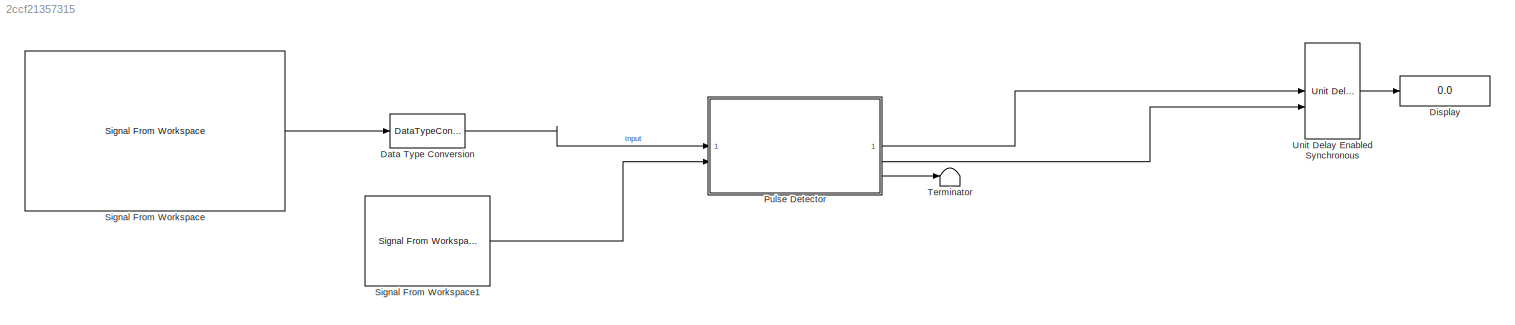
MODEL slx_2ccf21357315
KIND model
CONFIG AbsTol = auto
CONFIG EnableMultiTasking = off
CONFIG FixedStep = auto
CONFIG MaxStep = auto
CONFIG MinStep = auto
CONFIG RelTol = 1e-3
CONFIG SampleTimeConstraint = Unconstrained
CONFIG SolverName = FixedStepDiscrete
CONFIG StartTime = 0.0
CONFIG StopTime = SimTime
BLOCK [DataTypeConversion] Data Type Conversion
  OutDataTypeStr = DT_input
  RndMeth = Floor
  SaturateOnIntegerOverflow = off
BLOCK [Display] Display
  Decimation = 1
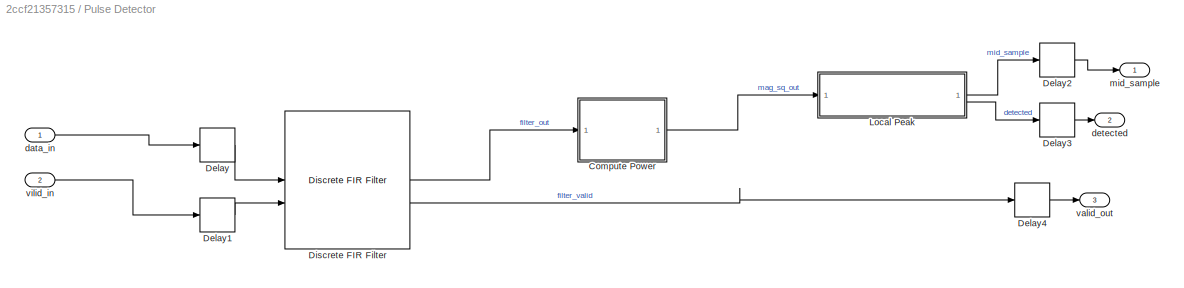
BLOCK [SubSystem] Pulse Detector
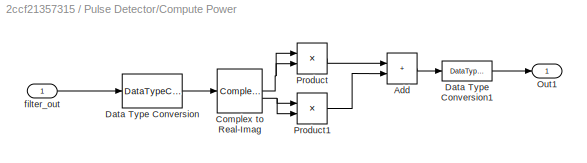
BLOCK [SubSystem] Pulse Detector/Compute Power
BLOCK [Sum] Pulse Detector/Compute Power/Add
  IconShape = rectangular
BLOCK [ComplexToRealImag] Pulse Detector/Compute Power/Complex to Real-Imag
BLOCK [DataTypeConversion] Pulse Detector/Compute Power/Data Type Conversion
  OutDataTypeStr = DT_filter
  RndMeth = Floor
  SaturateOnIntegerOverflow = off
BLOCK [DataTypeConversion] Pulse Detector/Compute Power/Data Type Conversion1
  OutDataTypeStr = DT_power
  RndMeth = Floor
  SaturateOnIntegerOverflow = off
BLOCK [Outport] Pulse Detector/Compute Power/Out1
BLOCK [Product] Pulse Detector/Compute Power/Product
BLOCK [Product] Pulse Detector/Compute Power/Product1
BLOCK [Inport] Pulse Detector/Compute Power/filter_out
BLOCK [Delay] Pulse Detector/Delay
  DelayLength = 1
  InputPortMap = u0
BLOCK [Delay] Pulse Detector/Delay1
  DelayLength = 1
  InputPortMap = u0
BLOCK [Delay] Pulse Detector/Delay2
  DelayLength = 1
  InputPortMap = u0
BLOCK [Delay] Pulse Detector/Delay3
  DelayLength = 1
  InputPortMap = u0
BLOCK [Delay] Pulse Detector/Delay4
  DelayLength = 1
  InputPortMap = u0
BLOCK [Reference] Pulse Detector/Discrete FIR Filter  REF=dsphdlfiltering2/Discrete FIR Filter
  SourceBlock = dsphdlfiltering2/Discrete FIR Filter
  SourceType = Discrete FIR Filter
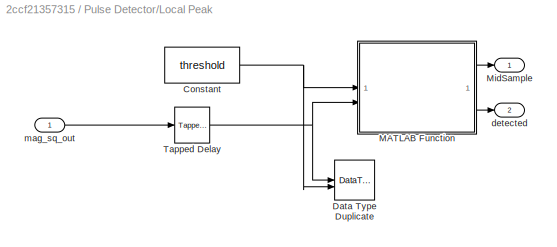
BLOCK [SubSystem] Pulse Detector/Local Peak
BLOCK [Constant] Pulse Detector/Local Peak/Constant
  OutDataTypeStr = Inherit: Inherit via back propagation
  SampleTime = -1
  Value = threshold
BLOCK [DataTypeDuplicate] Pulse Detector/Local Peak/Data Type Duplicate
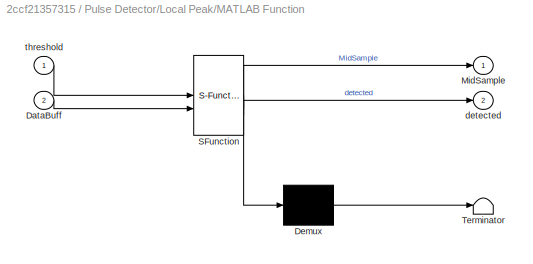
BLOCK [SubSystem] Pulse Detector/Local Peak/MATLAB Function
  ErrorFcn = Stateflow.Translate.translate
  LibrarySourceBlock = simulink/User-Defined\nFunctions/MATLAB Function
  PermitHierarchicalResolution = ExplicitOnly
  SFBlockType = MATLAB Function
  TreatAsAtomicUnit = on
BLOCK [Demux] Pulse Detector/Local Peak/MATLAB Function/ Demux 
  Outputs = 1
BLOCK [S-Function] Pulse Detector/Local Peak/MATLAB Function/ SFunction 
  EnableBusSupport = on
  FunctionName = sf_sfun
  Parameters = WindowLen
  PortCounts = [2 3]
  SFcnIsStateOwnerBlock = off
  SFunctionDeploymentMode = off
  Tag = Stateflow S-Function 2
BLOCK [Terminator] Pulse Detector/Local Peak/MATLAB Function/ Terminator 
BLOCK [Inport] Pulse Detector/Local Peak/MATLAB Function/DataBuff
  Port = 2
BLOCK [Outport] Pulse Detector/Local Peak/MATLAB Function/MidSample
BLOCK [Outport] Pulse Detector/Local Peak/MATLAB Function/detected
  Port = 2
BLOCK [Inport] Pulse Detector/Local Peak/MATLAB Function/threshold
BLOCK [Outport] Pulse Detector/Local Peak/MidSample
BLOCK [Reference] Pulse Detector/Local Peak/Tapped Delay  REF=simulink/Discrete/Tapped Delay
  SourceBlock = simulink/Discrete/Tapped Delay
  SourceType = Tapped Delay Line
BLOCK [Outport] Pulse Detector/Local Peak/detected
  Port = 2
BLOCK [Inport] Pulse Detector/Local Peak/mag_sq_out
BLOCK [Inport] Pulse Detector/data_in
BLOCK [Outport] Pulse Detector/detected
  Port = 2
BLOCK [Outport] Pulse Detector/mid_sample
BLOCK [Outport] Pulse Detector/valid_out
  Port = 3
BLOCK [Inport] Pulse Detector/vilid_in
  Port = 2
BLOCK [Reference] Signal From Workspace  REF=dspsrcs4/Signal From
Workspace
  SourceBlock = dspsrcs4/Signal From\nWorkspace
  SourceType = Signal From Workspace
BLOCK [Reference] Signal From Workspace1  REF=dspsrcs4/Signal From
Workspace
  SourceBlock = dspsrcs4/Signal From\nWorkspace
  SourceType = Signal From Workspace
BLOCK [Terminator] Terminator
BLOCK [Reference] Unit Delay Enabled Synchronous  REF=hdlsllib/Discrete/Unit Delay Enabled
Synchronous
  SourceBlock = hdlsllib/Discrete/Unit Delay Enabled\nSynchronous
  SourceType = Unit Delay Enabled Synchronous
LINE Data Type Conversion:1 -> Pulse Detector:1
LINE Pulse Detector/Compute Power/Add:1 -> Pulse Detector/Compute Power/Data Type Conversion1:1
NET Pulse Detector/Compute Power/Complex to Real-Imag:1 -> Pulse Detector/Compute Power/Product:1, Pulse Detector/Compute Power/Product:2
NET Pulse Detector/Compute Power/Complex to Real-Imag:2 -> Pulse Detector/Compute Power/Product1:1, Pulse Detector/Compute Power/Product1:2
LINE Pulse Detector/Compute Power/Data Type Conversion1:1 -> Pulse Detector/Compute Power/Out1:1
LINE Pulse Detector/Compute Power/Data Type Conversion:1 -> Pulse Detector/Compute Power/Complex to Real-Imag:1
LINE Pulse Detector/Compute Power/Product1:1 -> Pulse Detector/Compute Power/Add:2
LINE Pulse Detector/Compute Power/Product:1 -> Pulse Detector/Compute Power/Add:1
LINE Pulse Detector/Compute Power/filter_out:1 -> Pulse Detector/Compute Power/Data Type Conversion:1
LINE Pulse Detector/Compute Power:1 -> Pulse Detector/Local Peak:1
LINE Pulse Detector/Delay1:1 -> Pulse Detector/Discrete FIR Filter:2
LINE Pulse Detector/Delay2:1 -> Pulse Detector/mid_sample:1
LINE Pulse Detector/Delay3:1 -> Pulse Detector/detected:1
LINE Pulse Detector/Delay4:1 -> Pulse Detector/valid_out:1
LINE Pulse Detector/Delay:1 -> Pulse Detector/Discrete FIR Filter:1
LINE Pulse Detector/Discrete FIR Filter:1 -> Pulse Detector/Compute Power:1
LINE Pulse Detector/Discrete FIR Filter:2 -> Pulse Detector/Delay4:1
NET Pulse Detector/Local Peak/Constant:1 -> Pulse Detector/Local Peak/Data Type Duplicate:2, Pulse Detector/Local Peak/MATLAB Function:1
LINE Pulse Detector/Local Peak/MATLAB Function:1 -> Pulse Detector/Local Peak/MidSample:1
LINE Pulse Detector/Local Peak/MATLAB Function:2 -> Pulse Detector/Local Peak/detected:1
NET Pulse Detector/Local Peak/Tapped Delay:1 -> Pulse Detector/Local Peak/Data Type Duplicate:1, Pulse Detector/Local Peak/MATLAB Function:2
LINE Pulse Detector/Local Peak/mag_sq_out:1 -> Pulse Detector/Local Peak/Tapped Delay:1
LINE Pulse Detector/Local Peak:1 -> Pulse Detector/Delay2:1
LINE Pulse Detector/Local Peak:2 -> Pulse Detector/Delay3:1
LINE Pulse Detector/data_in:1 -> Pulse Detector/Delay:1
LINE Pulse Detector/vilid_in:1 -> Pulse Detector/Delay1:1
LINE Pulse Detector:1 -> Unit Delay Enabled Synchronous:1
LINE Pulse Detector:2 -> Unit Delay Enabled Synchronous:2
LINE Pulse Detector:3 -> Terminator:1
LINE Signal From Workspace1:1 -> Pulse Detector:2
LINE Signal From Workspace:1 -> Data Type Conversion:1
LINE Unit Delay Enabled Synchronous:1 -> Display:1
note: NET lines group one-source signal fan-out (src -> all destinations, sorted); 1:1 wires keep LINE
CHART Pulse Detector/Local Peak/MATLAB Function states=1 transitions=1
  STATE_LABEL 'eML_blk_kernel()'
  STATE_LABEL 'SCRIPT:\nfunction [MidSample,detected]=fcn(threshold,DataBuff, WindowLen)\n\nMidIdx = ceil(WindowLen/2);\n\nMidSample=DataBuff(MidIdx);\nCompareOut=DataBuff-MidSample;\n\n\n\n    % if all values in the result are negative and the middle sample is\n    % greater than a threshold, it is a local max\nif all(CompareOut <= 0) && (MidSample > threshold)\n    detected=true;\nelse\n    detected=false;\nend'
CHART  states=0 transitions=0
